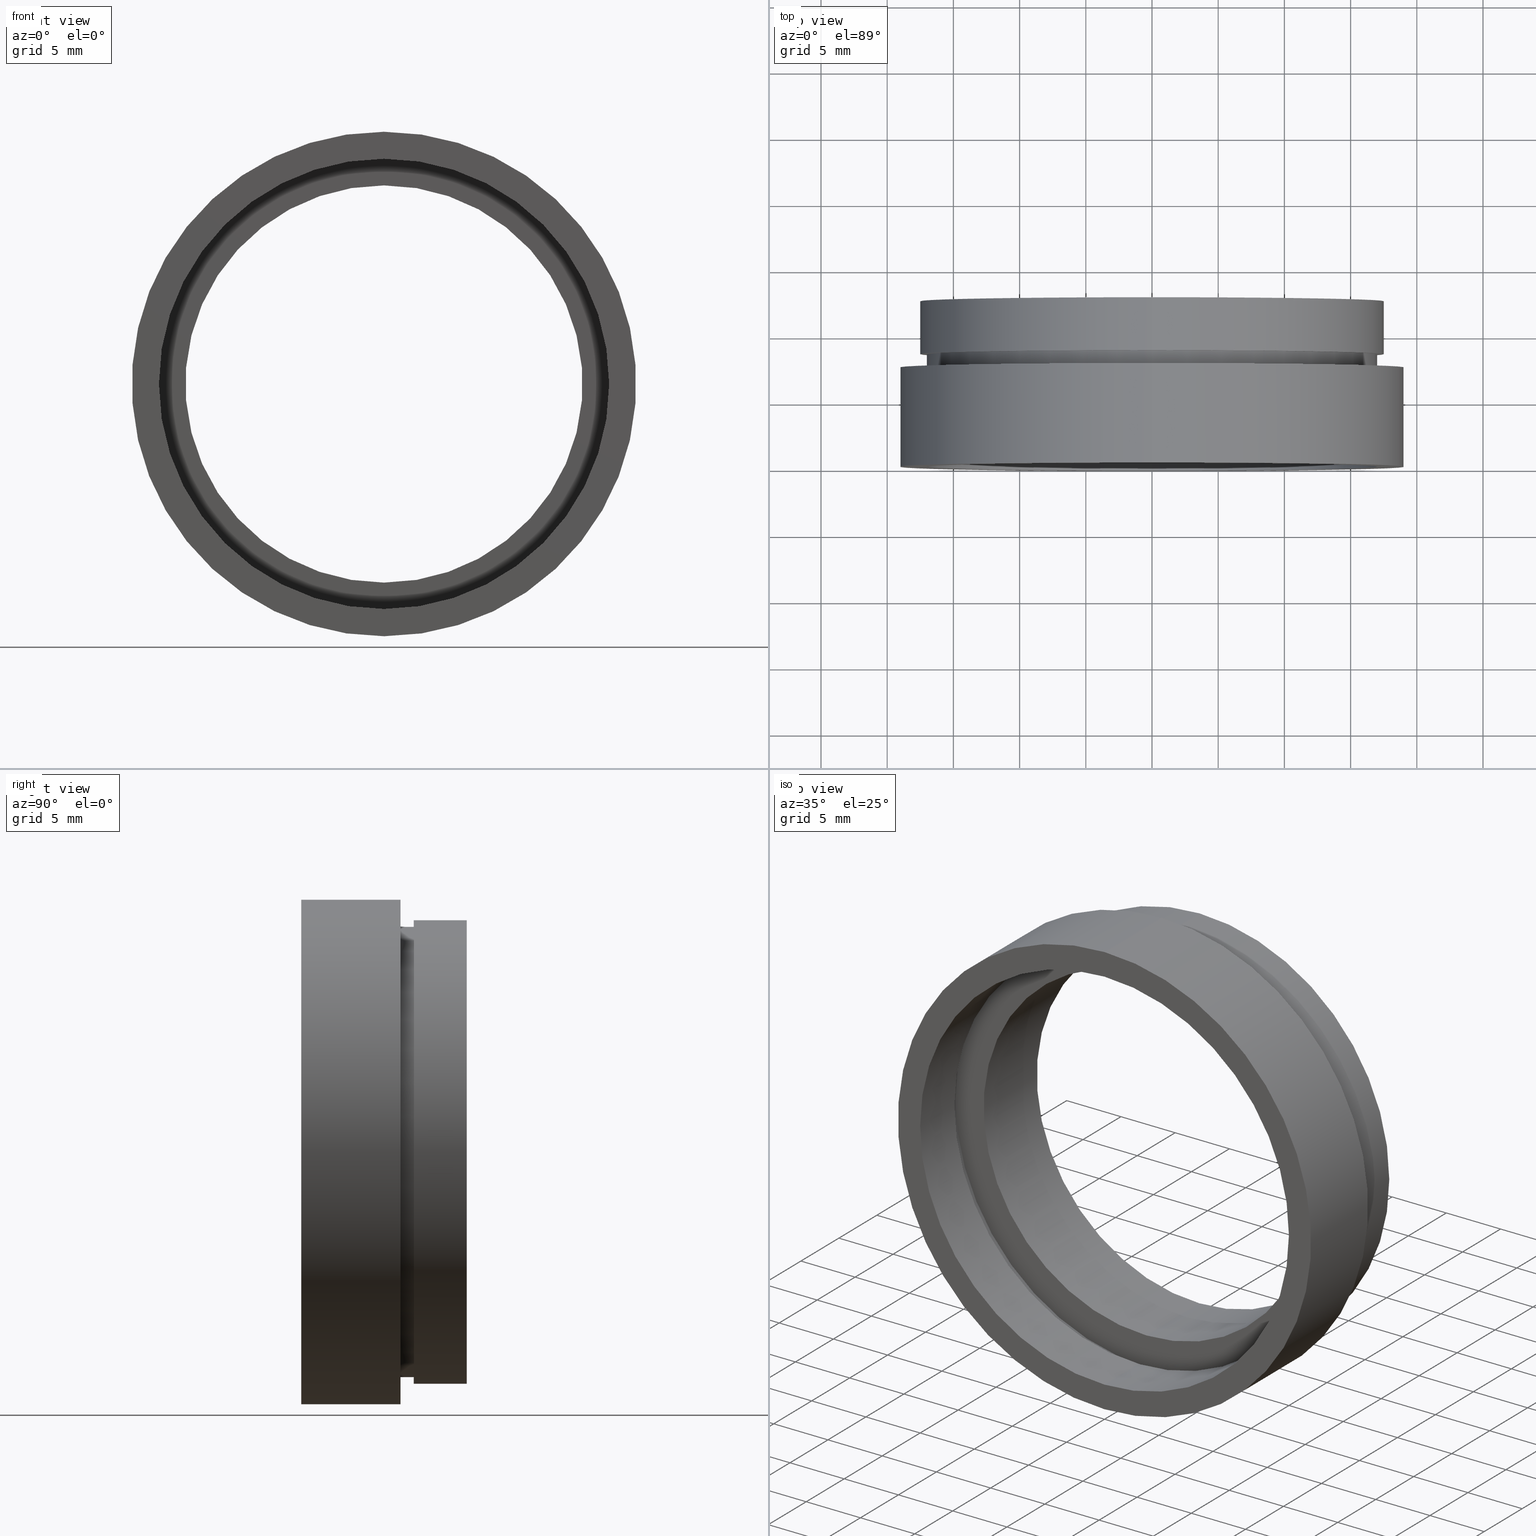
[diagram: canonical four-view strip — front | top / right | iso, engineering-drawing reading convention]
A machine part, canonical four-view strip (front | top / right | iso — engineering-drawing reading convention). The complete STEP part file that produces these views, byte-faithful:
ISO-10303-21;
HEADER;
FILE_DESCRIPTION (( 'STEP AP214' ),
    '1' );
FILE_NAME ('503038.STEP',
    '2019-09-06T01:23:15',
    ( '' ),
    ( '' ),
    'SwSTEP 2.0',
    'SolidWorks 2016',
    '' );
FILE_SCHEMA (( 'AUTOMOTIVE_DESIGN' ));
ENDSEC;

DATA;
#1 = CARTESIAN_POINT ( 'NONE',  ( 0.0000000000000000000, -2.775557561562891400E-014, 0.0000000000000000000 ) ) ;
#2 = CARTESIAN_POINT ( 'NONE',  ( 0.0000000000000000000, 5.499999999999976900, 0.0000000000000000000 ) ) ;
#3 = ORIENTED_EDGE ( 'NONE', *, *, #212, .T. ) ;
#4 = CIRCLE ( 'NONE', #563, 17.50000000000002800 ) ;
#5 = AXIS2_PLACEMENT_3D ( 'NONE', #335, #135, #231 ) ;
#6 = SURFACE_STYLE_USAGE ( .BOTH. , #238 ) ;
#7 = DIRECTION ( 'NONE',  ( -0.0000000000000000000, 1.000000000000000000, -0.0000000000000000000 ) ) ;
#8 = AXIS2_PLACEMENT_3D ( 'NONE', #148, #587, #144 ) ;
#9 = AXIS2_PLACEMENT_3D ( 'NONE', #351, #100, #202 ) ;
#10 = CARTESIAN_POINT ( 'NONE',  ( 0.0000000000000000000, 4.499999999999976000, 0.0000000000000000000 ) ) ;
#11 =( NAMED_UNIT ( * ) PLANE_ANGLE_UNIT ( ) SI_UNIT ( $, .RADIAN. ) );
#12 = EDGE_LOOP ( 'NONE', ( #379, #555, #319, #607 ) ) ;
#13 =( NAMED_UNIT ( * ) SI_UNIT ( $, .STERADIAN. ) SOLID_ANGLE_UNIT ( ) );
#14 = ORIENTED_EDGE ( 'NONE', *, *, #321, .T. ) ;
#15 = PLANE ( 'NONE',  #431 ) ;
#16 = DIRECTION ( 'NONE',  ( -0.0000000000000000000, 1.000000000000000000, -0.0000000000000000000 ) ) ;
#17 = CARTESIAN_POINT ( 'NONE',  ( 0.0000000000000000000, 161.3761669434274500, 17.60000000000002300 ) ) ;
#18 = UNCERTAINTY_MEASURE_WITH_UNIT (LENGTH_MEASURE( 1.000000000000000100E-005 ), #98, 'distance_accuracy_value', 'NONE');
#19 = VERTEX_POINT ( 'NONE', #162 ) ;
#20 = PRESENTATION_STYLE_ASSIGNMENT (( #562 ) ) ;
#21 = CARTESIAN_POINT ( 'NONE',  ( 0.0000000000000000000, -2.775557561562891400E-014, 19.05000000000002200 ) ) ;
#22 = EDGE_CURVE ( 'NONE', #262, #436, #74, .T. ) ;
#23 = CARTESIAN_POINT ( 'NONE',  ( 0.0000000000000000000, 12.49999999999998400, 17.50000000000002800 ) ) ;
#24 = DIRECTION ( 'NONE',  ( -0.0000000000000000000, 1.000000000000000000, -0.0000000000000000000 ) ) ;
#25 = ORIENTED_EDGE ( 'NONE', *, *, #79, .T. ) ;
#26 =( GEOMETRIC_REPRESENTATION_CONTEXT ( 3 ) GLOBAL_UNCERTAINTY_ASSIGNED_CONTEXT ( ( #580 ) ) GLOBAL_UNIT_ASSIGNED_CONTEXT ( ( #394, #139, #140 ) ) REPRESENTATION_CONTEXT ( 'NONE', 'WORKASPACE' ) );
#27 = CARTESIAN_POINT ( 'NONE',  ( 17.00000000000001800, 8.499999999999987600, 0.0000000000000000000 ) ) ;
#28 = CARTESIAN_POINT ( 'NONE',  ( 0.0000000000000000000, 161.3761669434274500, 0.0000000000000000000 ) ) ;
#29 = EDGE_LOOP ( 'NONE', ( #354, #327 ) ) ;
#30 = VECTOR ( 'NONE', #350, 1000.000000000000000 ) ;
#31 = FILL_AREA_STYLE_COLOUR ( '', #215 ) ;
#32 = CIRCLE ( 'NONE', #125, 17.00000000000001800 ) ;
#33 = DIRECTION ( 'NONE',  ( -0.0000000000000000000, 1.000000000000000000, -0.0000000000000000000 ) ) ;
#34 = UNCERTAINTY_MEASURE_WITH_UNIT (LENGTH_MEASURE( 1.000000000000000100E-005 ), #285, 'distance_accuracy_value', 'NONE');
#35 = PRESENTATION_LAYER_ASSIGNMENT (  '', '', ( #85 ) ) ;
#36 = DIRECTION ( 'NONE',  ( 0.0000000000000000000, 0.0000000000000000000, 1.000000000000000000 ) ) ;
#37 =( GEOMETRIC_REPRESENTATION_CONTEXT ( 3 ) GLOBAL_UNCERTAINTY_ASSIGNED_CONTEXT ( ( #18 ) ) GLOBAL_UNIT_ASSIGNED_CONTEXT ( ( #98, #532, #481 ) ) REPRESENTATION_CONTEXT ( 'NONE', 'WORKASPACE' ) );
#38 = DIRECTION ( 'NONE',  ( -0.0000000000000000000, 1.000000000000000000, -0.0000000000000000000 ) ) ;
#39 = VERTEX_POINT ( 'NONE', #261 ) ;
#40 = CIRCLE ( 'NONE', #286, 17.00000000000001800 ) ;
#41 = DIRECTION ( 'NONE',  ( 0.0000000000000000000, 0.0000000000000000000, 1.000000000000000000 ) ) ;
#42 = CIRCLE ( 'NONE', #167, 17.60000000000002300 ) ;
#43 = ADVANCED_FACE ( 'NONE', ( #209 ), #409, .T. ) ;
#44 = ADVANCED_FACE ( 'NONE', ( #522, #544 ), #599, .F. ) ;
#45 = ORIENTED_EDGE ( 'NONE', *, *, #584, .T. ) ;
#46 = LINE ( 'NONE', #255, #30 ) ;
#47 = VERTEX_POINT ( 'NONE', #311 ) ;
#48 = CARTESIAN_POINT ( 'NONE',  ( 0.0000000000000000000, 7.499999999999978700, 0.0000000000000000000 ) ) ;
#49 = EDGE_CURVE ( 'NONE', #621, #420, #550, .T. ) ;
#50 = ORIENTED_EDGE ( 'NONE', *, *, #260, .T. ) ;
#51 = FILL_AREA_STYLE ('',( #435 ) ) ;
#52 = CARTESIAN_POINT ( 'NONE',  ( 0.0000000000000000000, 161.3761669434274500, 17.00000000000002100 ) ) ;
#53 = ORIENTED_EDGE ( 'NONE', *, *, #91, .F. ) ;
#54 = COLOUR_RGB ( '',1.000000000000000000, 1.000000000000000000, 1.000000000000000000 ) ;
#55 = SURFACE_SIDE_STYLE ('',( #428 ) ) ;
#56 = MECHANICAL_DESIGN_GEOMETRIC_PRESENTATION_REPRESENTATION (  '', ( #184 ), #37 ) ;
#57 = EDGE_CURVE ( 'NONE', #313, #39, #32, .T. ) ;
#58 = SURFACE_STYLE_USAGE ( .BOTH. , #55 ) ;
#59 = DIRECTION ( 'NONE',  ( -0.0000000000000000000, 1.000000000000000000, -0.0000000000000000000 ) ) ;
#60 = CIRCLE ( 'NONE', #204, 15.00000000000001800 ) ;
#61 = LINE ( 'NONE', #72, #123 ) ;
#62 = VERTEX_POINT ( 'NONE', #23 ) ;
#63 = PLANE ( 'NONE',  #398 ) ;
#64 = DIRECTION ( 'NONE',  ( -0.0000000000000000000, 1.000000000000000000, -0.0000000000000000000 ) ) ;
#65 = ORIENTED_EDGE ( 'NONE', *, *, #109, .F. ) ;
#66 = AXIS2_PLACEMENT_3D ( 'NONE', #88, #528, #382 ) ;
#67 = EDGE_LOOP ( 'NONE', ( #65, #281 ) ) ;
#68 = AXIS2_PLACEMENT_3D ( 'NONE', #2, #343, #443 ) ;
#69 = PRESENTATION_STYLE_ASSIGNMENT (( #299 ) ) ;
#70 = AXIS2_PLACEMENT_3D ( 'NONE', #217, #317, #452 ) ;
#71 = DIRECTION ( 'NONE',  ( -0.0000000000000000000, 1.000000000000000000, 0.0000000000000000000 ) ) ;
#72 = CARTESIAN_POINT ( 'NONE',  ( 0.0000000000000000000, 161.3761669434274500, 15.00000000000001600 ) ) ;
#73 = DIRECTION ( 'NONE',  ( -0.0000000000000000000, 1.000000000000000000, -0.0000000000000000000 ) ) ;
#74 = CIRCLE ( 'NONE', #588, 17.50000000000002800 ) ;
#75 = VERTEX_POINT ( 'NONE', #411 ) ;
#76 = DIRECTION ( 'NONE',  ( 0.0000000000000000000, 0.0000000000000000000, 1.000000000000000000 ) ) ;
#77 = UNCERTAINTY_MEASURE_WITH_UNIT (LENGTH_MEASURE( 1.000000000000000100E-005 ), #564, 'distance_accuracy_value', 'NONE');
#78 = PRODUCT_RELATED_PRODUCT_CATEGORY ( 'part', '', ( #198 ) ) ;
#79 = EDGE_CURVE ( 'NONE', #420, #313, #577, .T. ) ;
#80 = DIRECTION ( 'NONE',  ( -0.0000000000000000000, 1.000000000000000000, -0.0000000000000000000 ) ) ;
#81 = EDGE_LOOP ( 'NONE', ( #108, #244 ) ) ;
#82 = DIRECTION ( 'NONE',  ( -0.0000000000000000000, 1.000000000000000000, -0.0000000000000000000 ) ) ;
#83 = VERTEX_POINT ( 'NONE', #264 ) ;
#84 = CIRCLE ( 'NONE', #617, 19.05000000000002200 ) ;
#85 = STYLED_ITEM ( 'NONE', ( #293 ), #520 ) ;
#86 = SURFACE_SIDE_STYLE ('',( #158 ) ) ;
#87 = ADVANCED_FACE ( 'NONE', ( #603 ), #328, .T. ) ;
#88 = CARTESIAN_POINT ( 'NONE',  ( 0.0000000000000000000, 161.3761669434274500, 0.0000000000000000000 ) ) ;
#89 = CIRCLE ( 'NONE', #367, 19.05000000000002200 ) ;
#90 = ORIENTED_EDGE ( 'NONE', *, *, #146, .F. ) ;
#91 = EDGE_CURVE ( 'NONE', #19, #47, #417, .T. ) ;
#92 = CARTESIAN_POINT ( 'NONE',  ( 17.00000000000002100, -1.493598162583808000E-014, 0.0000000000000000000 ) ) ;
#93 = EDGE_LOOP ( 'NONE', ( #161, #358 ) ) ;
#94 = DIRECTION ( 'NONE',  ( 0.0000000000000000000, 0.0000000000000000000, 1.000000000000000000 ) ) ;
#95 = EDGE_LOOP ( 'NONE', ( #510, #549, #498, #467 ) ) ;
#96 = AXIS2_PLACEMENT_3D ( 'NONE', #164, #166, #364 ) ;
#97 = ORIENTED_EDGE ( 'NONE', *, *, #445, .F. ) ;
#98 =( LENGTH_UNIT ( ) NAMED_UNIT ( * ) SI_UNIT ( .MILLI., .METRE. ) );
#99 = VECTOR ( 'NONE', #240, 1000.000000000000000 ) ;
#100 = DIRECTION ( 'NONE',  ( -0.0000000000000000000, 1.000000000000000000, -0.0000000000000000000 ) ) ;
#101 = AXIS2_PLACEMENT_3D ( 'NONE', #526, #237, #574 ) ;
#102 = PRESENTATION_LAYER_ASSIGNMENT (  '', '', ( #332 ) ) ;
#103 = DIRECTION ( 'NONE',  ( 0.0000000000000000000, 0.0000000000000000000, 1.000000000000000000 ) ) ;
#104 = DIRECTION ( 'NONE',  ( 0.0000000000000000000, 0.0000000000000000000, 1.000000000000000000 ) ) ;
#105 = FACE_OUTER_BOUND ( 'NONE', #118, .T. ) ;
#106 =( LENGTH_UNIT ( ) NAMED_UNIT ( * ) SI_UNIT ( .MILLI., .METRE. ) );
#107 = ORIENTED_EDGE ( 'NONE', *, *, #212, .F. ) ;
#108 = ORIENTED_EDGE ( 'NONE', *, *, #515, .F. ) ;
#109 = EDGE_CURVE ( 'NONE', #436, #262, #362, .T. ) ;
#110 = CIRCLE ( 'NONE', #230, 17.60000000000002300 ) ;
#111 = LINE ( 'NONE', #128, #307 ) ;
#112 = DIRECTION ( 'NONE',  ( 0.0000000000000000000, 0.0000000000000000000, 1.000000000000000000 ) ) ;
#113 = AXIS2_PLACEMENT_3D ( 'NONE', #136, #185, #581 ) ;
#114 = FACE_OUTER_BOUND ( 'NONE', #602, .T. ) ;
#115 = CARTESIAN_POINT ( 'NONE',  ( 0.0000000000000000000, 5.499999999999976900, 0.0000000000000000000 ) ) ;
#116 = LINE ( 'NONE', #17, #552 ) ;
#117 = CARTESIAN_POINT ( 'NONE',  ( 0.0000000000000000000, 12.49999999999998400, 15.00000000000001800 ) ) ;
#118 = EDGE_LOOP ( 'NONE', ( #561, #586 ) ) ;
#119 = EDGE_CURVE ( 'NONE', #47, #19, #110, .T. ) ;
#120 = CARTESIAN_POINT ( 'NONE',  ( 0.0000000000000000000, 7.499999999999978700, 19.05000000000002200 ) ) ;
#121 = FILL_AREA_STYLE_COLOUR ( '', #294 ) ;
#122 = ORIENTED_EDGE ( 'NONE', *, *, #179, .T. ) ;
#123 = VECTOR ( 'NONE', #373, 1000.000000000000000 ) ;
#124 =( LENGTH_UNIT ( ) NAMED_UNIT ( * ) SI_UNIT ( .MILLI., .METRE. ) );
#125 = AXIS2_PLACEMENT_3D ( 'NONE', #559, #73, #270 ) ;
#126 = CARTESIAN_POINT ( 'NONE',  ( 0.0000000000000000000, -2.775557561562891400E-014, 17.00000000000002100 ) ) ;
#127 = AXIS2_PLACEMENT_3D ( 'NONE', #490, #297, #389 ) ;
#128 = CARTESIAN_POINT ( 'NONE',  ( 2.081899558550502600E-015, 161.3761669434274500, -17.00000000000001800 ) ) ;
#129 = ADVANCED_FACE ( 'NONE', ( #200 ), #400, .F. ) ;
#130 = DIRECTION ( 'NONE',  ( -0.0000000000000000000, 1.000000000000000000, -0.0000000000000000000 ) ) ;
#131 = VERTEX_POINT ( 'NONE', #553 ) ;
#132 = VECTOR ( 'NONE', #183, 1000.000000000000000 ) ;
#133 = CIRCLE ( 'NONE', #8, 17.60000000000002300 ) ;
#134 = COLOUR_RGB ( '',1.000000000000000000, 1.000000000000000000, 1.000000000000000000 ) ;
#135 = DIRECTION ( 'NONE',  ( -0.0000000000000000000, 1.000000000000000000, -0.0000000000000000000 ) ) ;
#136 = CARTESIAN_POINT ( 'NONE',  ( 0.0000000000000000000, 161.3761669434274500, 0.0000000000000000000 ) ) ;
#137 = CLOSED_SHELL ( 'NONE', ( #182, #129, #425, #383, #43, #616, #336, #433, #377, #476, #44, #87, #572, #570, #527, #284, #334, #520 ) ) ;
#138 =( NAMED_UNIT ( * ) PLANE_ANGLE_UNIT ( ) SI_UNIT ( $, .RADIAN. ) );
#139 =( NAMED_UNIT ( * ) PLANE_ANGLE_UNIT ( ) SI_UNIT ( $, .RADIAN. ) );
#140 =( NAMED_UNIT ( * ) SI_UNIT ( $, .STERADIAN. ) SOLID_ANGLE_UNIT ( ) );
#141 = ORIENTED_EDGE ( 'NONE', *, *, #455, .F. ) ;
#142 = SURFACE_STYLE_FILL_AREA ( #611 ) ;
#143 =( LENGTH_UNIT ( ) NAMED_UNIT ( * ) SI_UNIT ( .MILLI., .METRE. ) );
#144 = DIRECTION ( 'NONE',  ( 0.0000000000000000000, 0.0000000000000000000, 1.000000000000000000 ) ) ;
#145 = AXIS2_PLACEMENT_3D ( 'NONE', #501, #16, #104 ) ;
#146 = EDGE_CURVE ( 'NONE', #241, #156, #61, .T. ) ;
#147 = MANIFOLD_SOLID_BREP ( '��ת1', #137 ) ;
#148 = CARTESIAN_POINT ( 'NONE',  ( 0.0000000000000000000, 4.499999999999976000, 0.0000000000000000000 ) ) ;
#149 =( NAMED_UNIT ( * ) SI_UNIT ( $, .STERADIAN. ) SOLID_ANGLE_UNIT ( ) );
#150 = ORIENTED_EDGE ( 'NONE', *, *, #591, .T. ) ;
#151 =( LENGTH_UNIT ( ) NAMED_UNIT ( * ) SI_UNIT ( .MILLI., .METRE. ) );
#152 = CARTESIAN_POINT ( 'NONE',  ( 0.0000000000000000000, 12.49999999999998400, 0.0000000000000000000 ) ) ;
#153 = AXIS2_PLACEMENT_3D ( 'NONE', #1, #191, #94 ) ;
#154 =( NAMED_UNIT ( * ) PLANE_ANGLE_UNIT ( ) SI_UNIT ( $, .RADIAN. ) );
#155 = EDGE_CURVE ( 'NONE', #457, #241, #169, .T. ) ;
#156 = VERTEX_POINT ( 'NONE', #117 ) ;
#157 = CYLINDRICAL_SURFACE ( 'NONE', #366, 17.00000000000001800 ) ;
#158 = SURFACE_STYLE_FILL_AREA ( #275 ) ;
#159 = DIRECTION ( 'NONE',  ( 0.0000000000000000000, 0.0000000000000000000, 1.000000000000000000 ) ) ;
#160 = DIRECTION ( 'NONE',  ( 0.0000000000000000000, 0.0000000000000000000, 1.000000000000000000 ) ) ;
#161 = ORIENTED_EDGE ( 'NONE', *, *, #462, .F. ) ;
#162 = CARTESIAN_POINT ( 'NONE',  ( 2.155378366499344400E-015, 5.499999999999976900, -17.60000000000002300 ) ) ;
#163 = MECHANICAL_DESIGN_GEOMETRIC_PRESENTATION_REPRESENTATION (  '', ( #410 ), #341 ) ;
#164 = CARTESIAN_POINT ( 'NONE',  ( 0.0000000000000000000, 161.3761669434274500, 0.0000000000000000000 ) ) ;
#165 = AXIS2_PLACEMENT_3D ( 'NONE', #478, #533, #575 ) ;
#166 = DIRECTION ( 'NONE',  ( -0.0000000000000000000, 1.000000000000000000, -0.0000000000000000000 ) ) ;
#167 = AXIS2_PLACEMENT_3D ( 'NONE', #10, #447, #589 ) ;
#168 = EDGE_LOOP ( 'NONE', ( #421, #53 ) ) ;
#169 = CIRCLE ( 'NONE', #196, 15.00000000000001600 ) ;
#170 = CIRCLE ( 'NONE', #5, 15.00000000000001800 ) ;
#171 = CYLINDRICAL_SURFACE ( 'NONE', #9, 15.00000000000001600 ) ;
#172 =( NAMED_UNIT ( * ) PLANE_ANGLE_UNIT ( ) SI_UNIT ( $, .RADIAN. ) );
#173 = DIRECTION ( 'NONE',  ( -0.0000000000000000000, 1.000000000000000000, -0.0000000000000000000 ) ) ;
#174 = UNCERTAINTY_MEASURE_WITH_UNIT (LENGTH_MEASURE( 1.000000000000000100E-005 ), #124, 'distance_accuracy_value', 'NONE');
#175 = FACE_BOUND ( 'NONE', #29, .T. ) ;
#176 = SURFACE_STYLE_USAGE ( .BOTH. , #220 ) ;
#177 = VERTEX_POINT ( 'NONE', #468 ) ;
#178 = ORIENTED_EDGE ( 'NONE', *, *, #360, .F. ) ;
#179 = EDGE_CURVE ( 'NONE', #62, #83, #4, .T. ) ;
#180 = VERTEX_POINT ( 'NONE', #120 ) ;
#181 = DIRECTION ( 'NONE',  ( -0.0000000000000000000, 1.000000000000000000, -0.0000000000000000000 ) ) ;
#182 = ADVANCED_FACE ( 'NONE', ( #504 ), #618, .F. ) ;
#183 = DIRECTION ( 'NONE',  ( -0.0000000000000000000, 1.000000000000000000, -0.0000000000000000000 ) ) ;
#184 = STYLED_ITEM ( 'NONE', ( #69 ), #425 ) ;
#185 = DIRECTION ( 'NONE',  ( -0.0000000000000000000, 1.000000000000000000, -0.0000000000000000000 ) ) ;
#186 = CARTESIAN_POINT ( 'NONE',  ( 1.836970198721032000E-015, 161.3761669434274500, -15.00000000000001600 ) ) ;
#187 = CYLINDRICAL_SURFACE ( 'NONE', #256, 15.00000000000001600 ) ;
#188 = VECTOR ( 'NONE', #322, 1000.000000000000000 ) ;
#189 = EDGE_CURVE ( 'NONE', #39, #313, #253, .T. ) ;
#190 = ORIENTED_EDGE ( 'NONE', *, *, #119, .T. ) ;
#191 = DIRECTION ( 'NONE',  ( -0.0000000000000000000, 1.000000000000000000, -0.0000000000000000000 ) ) ;
#192 = CARTESIAN_POINT ( 'NONE',  ( 2.332952152375710400E-015, 161.3761669434274500, -19.05000000000002200 ) ) ;
#193 = ORIENTED_EDGE ( 'NONE', *, *, #418, .T. ) ;
#194 = DIRECTION ( 'NONE',  ( -0.0000000000000000000, 1.000000000000000000, -0.0000000000000000000 ) ) ;
#195 = SURFACE_SIDE_STYLE ('',( #282 ) ) ;
#196 = AXIS2_PLACEMENT_3D ( 'NONE', #415, #517, #76 ) ;
#197 = DIRECTION ( 'NONE',  ( 0.0000000000000000000, 0.0000000000000000000, 1.000000000000000000 ) ) ;
#198 = PRODUCT ( '503038', '503038', '', ( #250 ) ) ;
#199 = ORIENTED_EDGE ( 'NONE', *, *, #484, .F. ) ;
#200 = FACE_OUTER_BOUND ( 'NONE', #456, .T. ) ;
#201 = COLOUR_RGB ( '',1.000000000000000000, 1.000000000000000000, 1.000000000000000000 ) ;
#202 = DIRECTION ( 'NONE',  ( 0.0000000000000000000, 0.0000000000000000000, 1.000000000000000000 ) ) ;
#203 = PRESENTATION_STYLE_ASSIGNMENT (( #58 ) ) ;
#204 = AXIS2_PLACEMENT_3D ( 'NONE', #152, #355, #207 ) ;
#205 = STYLED_ITEM ( 'NONE', ( #497 ), #357 ) ;
#206 = CARTESIAN_POINT ( 'NONE',  ( 2.081899558550503000E-015, -2.775557561562891400E-014, -17.00000000000002100 ) ) ;
#207 = DIRECTION ( 'NONE',  ( 0.0000000000000000000, 0.0000000000000000000, 1.000000000000000000 ) ) ;
#208 = CYLINDRICAL_SURFACE ( 'NONE', #113, 19.05000000000002200 ) ;
#209 = FACE_OUTER_BOUND ( 'NONE', #592, .T. ) ;
#210 = DIRECTION ( 'NONE',  ( 0.0000000000000000000, 0.0000000000000000000, 1.000000000000000000 ) ) ;
#211 = EDGE_LOOP ( 'NONE', ( #269, #361 ) ) ;
#212 = EDGE_CURVE ( 'NONE', #622, #180, #495, .T. ) ;
#213 = EDGE_LOOP ( 'NONE', ( #560, #272, #25, #453 ) ) ;
#214 = ORIENTED_EDGE ( 'NONE', *, *, #277, .F. ) ;
#215 = COLOUR_RGB ( '',1.000000000000000000, 1.000000000000000000, 1.000000000000000000 ) ;
#216 = CIRCLE ( 'NONE', #523, 17.00000000000002100 ) ;
#217 = CARTESIAN_POINT ( 'NONE',  ( 0.0000000000000000000, 0.0000000000000000000, 0.0000000000000000000 ) ) ;
#218 = ORIENTED_EDGE ( 'NONE', *, *, #418, .F. ) ;
#219 = PRESENTATION_LAYER_ASSIGNMENT (  '', '', ( #184 ) ) ;
#220 = SURFACE_SIDE_STYLE ('',( #142 ) ) ;
#221 = SURFACE_STYLE_FILL_AREA ( #51 ) ;
#222 = ORIENTED_EDGE ( 'NONE', *, *, #155, .F. ) ;
#223 = EDGE_CURVE ( 'NONE', #177, #259, #507, .T. ) ;
#224 = ORIENTED_EDGE ( 'NONE', *, *, #345, .F. ) ;
#225 = CARTESIAN_POINT ( 'NONE',  ( 0.0000000000000000000, 12.49999999999998400, 0.0000000000000000000 ) ) ;
#226 = DIRECTION ( 'NONE',  ( 0.0000000000000000000, 0.0000000000000000000, 1.000000000000000000 ) ) ;
#227 = EDGE_LOOP ( 'NONE', ( #502, #547 ) ) ;
#228 = CARTESIAN_POINT ( 'NONE',  ( 0.0000000000000000000, 5.499999999999976900, 0.0000000000000000000 ) ) ;
#229 = ORIENTED_EDGE ( 'NONE', *, *, #57, .F. ) ;
#230 = AXIS2_PLACEMENT_3D ( 'NONE', #228, #80, #226 ) ;
#231 = DIRECTION ( 'NONE',  ( 0.0000000000000000000, 0.0000000000000000000, 1.000000000000000000 ) ) ;
#232 = PRESENTATION_LAYER_ASSIGNMENT (  '', '', ( #429 ) ) ;
#233 = PRODUCT_DEFINITION ( 'δ֪', '', #505, #283 ) ;
#234 = DIRECTION ( 'NONE',  ( 0.0000000000000000000, 0.0000000000000000000, 1.000000000000000000 ) ) ;
#235 = CARTESIAN_POINT ( 'NONE',  ( 0.0000000000000000000, 4.499999999999976000, 0.0000000000000000000 ) ) ;
#236 = CYLINDRICAL_SURFACE ( 'NONE', #318, 17.60000000000002300 ) ;
#237 = DIRECTION ( 'NONE',  ( -0.0000000000000000000, 1.000000000000000000, -0.0000000000000000000 ) ) ;
#238 = SURFACE_SIDE_STYLE ('',( #221 ) ) ;
#239 = VERTEX_POINT ( 'NONE', #623 ) ;
#240 = DIRECTION ( 'NONE',  ( -0.0000000000000000000, 1.000000000000000000, -0.0000000000000000000 ) ) ;
#241 = VERTEX_POINT ( 'NONE', #480 ) ;
#242 = FILL_AREA_STYLE ('',( #585 ) ) ;
#243 = DIRECTION ( 'NONE',  ( 0.0000000000000000000, 0.0000000000000000000, 1.000000000000000000 ) ) ;
#244 = ORIENTED_EDGE ( 'NONE', *, *, #223, .F. ) ;
#245 =( GEOMETRIC_REPRESENTATION_CONTEXT ( 3 ) GLOBAL_UNCERTAINTY_ASSIGNED_CONTEXT ( ( #372 ) ) GLOBAL_UNIT_ASSIGNED_CONTEXT ( ( #143, #172, #365 ) ) REPRESENTATION_CONTEXT ( 'NONE', 'WORKASPACE' ) );
#246 = SHAPE_DEFINITION_REPRESENTATION ( #254, #357 ) ;
#247 = EDGE_CURVE ( 'NONE', #436, #62, #380, .T. ) ;
#248 = DIRECTION ( 'NONE',  ( -0.0000000000000000000, 1.000000000000000000, -0.0000000000000000000 ) ) ;
#249 = APPLICATION_PROTOCOL_DEFINITION ( 'draft international standard', 'automotive_design', 1998, #534 ) ;
#250 = PRODUCT_CONTEXT ( 'NONE', #534, 'mechanical' ) ;
#251 = SURFACE_SIDE_STYLE ('',( #401 ) ) ;
#252 = ORIENTED_EDGE ( 'NONE', *, *, #455, .T. ) ;
#253 = CIRCLE ( 'NONE', #298, 17.00000000000001800 ) ;
#254 = PRODUCT_DEFINITION_SHAPE ( 'NONE', 'NONE',  #233 ) ;
#255 = CARTESIAN_POINT ( 'NONE',  ( 2.143131898507871800E-015, 161.3761669434274500, -17.50000000000002800 ) ) ;
#256 = AXIS2_PLACEMENT_3D ( 'NONE', #290, #248, #487 ) ;
#257 = SURFACE_STYLE_USAGE ( .BOTH. , #251 ) ;
#258 = DIRECTION ( 'NONE',  ( -0.0000000000000000000, 1.000000000000000000, -0.0000000000000000000 ) ) ;
#259 = VERTEX_POINT ( 'NONE', #473 ) ;
#260 = EDGE_CURVE ( 'NONE', #239, #156, #170, .T. ) ;
#261 = CARTESIAN_POINT ( 'NONE',  ( 2.081899558550502600E-015, 8.499999999999980500, -17.00000000000001800 ) ) ;
#262 = VERTEX_POINT ( 'NONE', #578 ) ;
#263 = STYLED_ITEM ( 'NONE', ( #568 ), #182 ) ;
#264 = CARTESIAN_POINT ( 'NONE',  ( 2.143131898507871800E-015, 12.49999999999998400, -17.50000000000002800 ) ) ;
#265 = AXIS2_PLACEMENT_3D ( 'NONE', #519, #376, #391 ) ;
#266 = ORIENTED_EDGE ( 'NONE', *, *, #515, .T. ) ;
#267 = ORIENTED_EDGE ( 'NONE', *, *, #375, .F. ) ;
#268 = FACE_OUTER_BOUND ( 'NONE', #471, .T. ) ;
#269 = ORIENTED_EDGE ( 'NONE', *, *, #390, .F. ) ;
#270 = DIRECTION ( 'NONE',  ( 0.0000000000000000000, 0.0000000000000000000, 1.000000000000000000 ) ) ;
#271 =( NAMED_UNIT ( * ) PLANE_ANGLE_UNIT ( ) SI_UNIT ( $, .RADIAN. ) );
#272 = ORIENTED_EDGE ( 'NONE', *, *, #49, .T. ) ;
#273 = MECHANICAL_DESIGN_GEOMETRIC_PRESENTATION_REPRESENTATION (  '', ( #518 ), #395 ) ;
#274 = CYLINDRICAL_SURFACE ( 'NONE', #145, 17.00000000000002100 ) ;
#275 = FILL_AREA_STYLE ('',( #121 ) ) ;
#276 =( GEOMETRIC_REPRESENTATION_CONTEXT ( 3 ) GLOBAL_UNCERTAINTY_ASSIGNED_CONTEXT ( ( #486 ) ) GLOBAL_UNIT_ASSIGNED_CONTEXT ( ( #349, #11, #149 ) ) REPRESENTATION_CONTEXT ( 'NONE', 'WORKASPACE' ) );
#277 = EDGE_CURVE ( 'NONE', #457, #239, #381, .T. ) ;
#278 =( NAMED_UNIT ( * ) PLANE_ANGLE_UNIT ( ) SI_UNIT ( $, .RADIAN. ) );
#279 = DIRECTION ( 'NONE',  ( -0.0000000000000000000, 1.000000000000000000, -0.0000000000000000000 ) ) ;
#280 = DIRECTION ( 'NONE',  ( 0.0000000000000000000, 0.0000000000000000000, 1.000000000000000000 ) ) ;
#281 = ORIENTED_EDGE ( 'NONE', *, *, #22, .F. ) ;
#282 = SURFACE_STYLE_FILL_AREA ( #242 ) ;
#283 = PRODUCT_DEFINITION_CONTEXT ( 'detailed design', #474, 'design' ) ;
#284 = ADVANCED_FACE ( 'NONE', ( #114 ), #236, .F. ) ;
#285 =( LENGTH_UNIT ( ) NAMED_UNIT ( * ) SI_UNIT ( .MILLI., .METRE. ) );
#286 = AXIS2_PLACEMENT_3D ( 'NONE', #529, #339, #288 ) ;
#287 = CARTESIAN_POINT ( 'NONE',  ( 0.0000000000000000000, 161.3761669434274500, 19.05000000000002200 ) ) ;
#288 = DIRECTION ( 'NONE',  ( 0.0000000000000000000, 0.0000000000000000000, 1.000000000000000000 ) ) ;
#289 = EDGE_LOOP ( 'NONE', ( #511, #407 ) ) ;
#290 = CARTESIAN_POINT ( 'NONE',  ( 0.0000000000000000000, 161.3761669434274500, 0.0000000000000000000 ) ) ;
#291 = ORIENTED_EDGE ( 'NONE', *, *, #591, .F. ) ;
#292 = EDGE_CURVE ( 'NONE', #573, #320, #337, .T. ) ;
#293 = PRESENTATION_STYLE_ASSIGNMENT (( #257 ) ) ;
#294 = COLOUR_RGB ( '',1.000000000000000000, 1.000000000000000000, 1.000000000000000000 ) ;
#295 = EDGE_LOOP ( 'NONE', ( #45, #252, #224, #107 ) ) ;
#296 = EDGE_LOOP ( 'NONE', ( #222, #506, #50, #90 ) ) ;
#297 = DIRECTION ( 'NONE',  ( -0.0000000000000000000, 1.000000000000000000, -0.0000000000000000000 ) ) ;
#298 = AXIS2_PLACEMENT_3D ( 'NONE', #432, #130, #234 ) ;
#299 = SURFACE_STYLE_USAGE ( .BOTH. , #195 ) ;
#300 = ORIENTED_EDGE ( 'NONE', *, *, #79, .F. ) ;
#301 = FILL_AREA_STYLE ('',( #451 ) ) ;
#302 = AXIS2_PLACEMENT_3D ( 'NONE', #393, #7, #197 ) ;
#303 = FACE_OUTER_BOUND ( 'NONE', #608, .T. ) ;
#304 = MECHANICAL_DESIGN_GEOMETRIC_PRESENTATION_REPRESENTATION (  '', ( #332 ), #604 ) ;
#305 = FILL_AREA_STYLE ('',( #590 ) ) ;
#306 = DIRECTION ( 'NONE',  ( 0.0000000000000000000, -1.000000000000000000, 0.0000000000000000000 ) ) ;
#307 = VECTOR ( 'NONE', #181, 1000.000000000000000 ) ;
#308 = CARTESIAN_POINT ( 'NONE',  ( 1.836970198721032000E-015, 5.499999999999976900, -15.00000000000001600 ) ) ;
#309 = CARTESIAN_POINT ( 'NONE',  ( 0.0000000000000000000, 161.3761669434274500, 0.0000000000000000000 ) ) ;
#310 = PRESENTATION_LAYER_ASSIGNMENT (  '', '', ( #410 ) ) ;
#311 = CARTESIAN_POINT ( 'NONE',  ( 0.0000000000000000000, 5.499999999999976900, 17.60000000000002300 ) ) ;
#312 = CARTESIAN_POINT ( 'NONE',  ( 2.081899558550502600E-015, 7.499999999999978700, -17.00000000000001800 ) ) ;
#313 = VERTEX_POINT ( 'NONE', #385 ) ;
#314 = CARTESIAN_POINT ( 'NONE',  ( 0.0000000000000000000, 161.3761669434274500, 17.00000000000001800 ) ) ;
#315 = EDGE_CURVE ( 'NONE', #320, #573, #216, .T. ) ;
#316 = ORIENTED_EDGE ( 'NONE', *, *, #223, .T. ) ;
#317 = DIRECTION ( 'NONE',  ( 0.0000000000000000000, 0.0000000000000000000, 1.000000000000000000 ) ) ;
#318 = AXIS2_PLACEMENT_3D ( 'NONE', #566, #279, #475 ) ;
#319 = ORIENTED_EDGE ( 'NONE', *, *, #247, .T. ) ;
#320 = VERTEX_POINT ( 'NONE', #126 ) ;
#321 = EDGE_CURVE ( 'NONE', #621, #39, #111, .T. ) ;
#322 = DIRECTION ( 'NONE',  ( -0.0000000000000000000, 1.000000000000000000, -0.0000000000000000000 ) ) ;
#323 = ORIENTED_EDGE ( 'NONE', *, *, #146, .T. ) ;
#324 = CARTESIAN_POINT ( 'NONE',  ( 0.0000000000000000000, 161.3761669434274500, 0.0000000000000000000 ) ) ;
#325 = DIRECTION ( 'NONE',  ( 0.0000000000000000000, 0.0000000000000000000, 1.000000000000000000 ) ) ;
#326 = AXIS2_PLACEMENT_3D ( 'NONE', #115, #173, #325 ) ;
#327 = ORIENTED_EDGE ( 'NONE', *, *, #292, .T. ) ;
#328 = CYLINDRICAL_SURFACE ( 'NONE', #371, 17.50000000000002800 ) ;
#329 = FACE_OUTER_BOUND ( 'NONE', #95, .T. ) ;
#330 = CARTESIAN_POINT ( 'NONE',  ( 0.0000000000000000000, -2.775557561562891400E-014, 0.0000000000000000000 ) ) ;
#331 = AXIS2_PLACEMENT_3D ( 'NONE', #499, #492, #103 ) ;
#332 = STYLED_ITEM ( 'NONE', ( #203 ), #570 ) ;
#333 = CARTESIAN_POINT ( 'NONE',  ( 0.0000000000000000000, 161.3761669434274500, 17.50000000000002800 ) ) ;
#334 = ADVANCED_FACE ( 'NONE', ( #489, #524 ), #525, .F. ) ;
#335 = CARTESIAN_POINT ( 'NONE',  ( 0.0000000000000000000, 12.49999999999998400, 0.0000000000000000000 ) ) ;
#336 = ADVANCED_FACE ( 'NONE', ( #303, #175 ), #440, .F. ) ;
#337 = CIRCLE ( 'NONE', #101, 17.00000000000002100 ) ;
#338 = CARTESIAN_POINT ( 'NONE',  ( 0.0000000000000000000, 8.499999999999980500, 17.50000000000002800 ) ) ;
#339 = DIRECTION ( 'NONE',  ( -0.0000000000000000000, 1.000000000000000000, -0.0000000000000000000 ) ) ;
#340 = ORIENTED_EDGE ( 'NONE', *, *, #584, .F. ) ;
#341 =( GEOMETRIC_REPRESENTATION_CONTEXT ( 3 ) GLOBAL_UNCERTAINTY_ASSIGNED_CONTEXT ( ( #174 ) ) GLOBAL_UNIT_ASSIGNED_CONTEXT ( ( #124, #271, #368 ) ) REPRESENTATION_CONTEXT ( 'NONE', 'WORKASPACE' ) );
#342 = DIRECTION ( 'NONE',  ( 0.0000000000000000000, 0.0000000000000000000, 1.000000000000000000 ) ) ;
#343 = DIRECTION ( 'NONE',  ( -0.0000000000000000000, 1.000000000000000000, -0.0000000000000000000 ) ) ;
#344 = PRESENTATION_LAYER_ASSIGNMENT (  '', '', ( #205 ) ) ;
#345 = EDGE_CURVE ( 'NONE', #180, #131, #84, .T. ) ;
#346 = ORIENTED_EDGE ( 'NONE', *, *, #360, .T. ) ;
#347 = COLOUR_RGB ( '',1.000000000000000000, 1.000000000000000000, 1.000000000000000000 ) ;
#348 = CYLINDRICAL_SURFACE ( 'NONE', #127, 17.50000000000002800 ) ;
#349 =( LENGTH_UNIT ( ) NAMED_UNIT ( * ) SI_UNIT ( .MILLI., .METRE. ) );
#350 = DIRECTION ( 'NONE',  ( -0.0000000000000000000, 1.000000000000000000, -0.0000000000000000000 ) ) ;
#351 = CARTESIAN_POINT ( 'NONE',  ( 0.0000000000000000000, 161.3761669434274500, 0.0000000000000000000 ) ) ;
#352 = AXIS2_PLACEMENT_3D ( 'NONE', #92, #485, #388 ) ;
#353 = APPLICATION_PROTOCOL_DEFINITION ( 'draft international standard', 'automotive_design', 1998, #474 ) ;
#354 = ORIENTED_EDGE ( 'NONE', *, *, #315, .T. ) ;
#355 = DIRECTION ( 'NONE',  ( -0.0000000000000000000, 1.000000000000000000, -0.0000000000000000000 ) ) ;
#356 = DIRECTION ( 'NONE',  ( 0.0000000000000000000, 0.0000000000000000000, 1.000000000000000000 ) ) ;
#357 = ADVANCED_BREP_SHAPE_REPRESENTATION ( '503038', ( #147, #70 ), #276 ) ;
#358 = ORIENTED_EDGE ( 'NONE', *, *, #260, .F. ) ;
#359 = CARTESIAN_POINT ( 'NONE',  ( 2.081899558550503000E-015, 161.3761669434274500, -17.00000000000002100 ) ) ;
#360 = EDGE_CURVE ( 'NONE', #479, #622, #427, .T. ) ;
#361 = ORIENTED_EDGE ( 'NONE', *, *, #49, .F. ) ;
#362 = CIRCLE ( 'NONE', #503, 17.50000000000002800 ) ;
#363 = AXIS2_PLACEMENT_3D ( 'NONE', #27, #71, #548 ) ;
#364 = DIRECTION ( 'NONE',  ( 0.0000000000000000000, 0.0000000000000000000, 1.000000000000000000 ) ) ;
#365 =( NAMED_UNIT ( * ) SI_UNIT ( $, .STERADIAN. ) SOLID_ANGLE_UNIT ( ) );
#366 = AXIS2_PLACEMENT_3D ( 'NONE', #624, #538, #210 ) ;
#367 = AXIS2_PLACEMENT_3D ( 'NONE', #540, #258, #356 ) ;
#368 =( NAMED_UNIT ( * ) SI_UNIT ( $, .STERADIAN. ) SOLID_ANGLE_UNIT ( ) );
#369 = ORIENTED_EDGE ( 'NONE', *, *, #546, .T. ) ;
#370 =( NAMED_UNIT ( * ) SI_UNIT ( $, .STERADIAN. ) SOLID_ANGLE_UNIT ( ) );
#371 = AXIS2_PLACEMENT_3D ( 'NONE', #28, #614, #422 ) ;
#372 = UNCERTAINTY_MEASURE_WITH_UNIT (LENGTH_MEASURE( 1.000000000000000100E-005 ), #143, 'distance_accuracy_value', 'NONE');
#373 = DIRECTION ( 'NONE',  ( -0.0000000000000000000, 1.000000000000000000, -0.0000000000000000000 ) ) ;
#374 = MECHANICAL_DESIGN_GEOMETRIC_PRESENTATION_REPRESENTATION (  '', ( #205 ), #245 ) ;
#375 = EDGE_CURVE ( 'NONE', #131, #180, #576, .T. ) ;
#376 = DIRECTION ( 'NONE',  ( 0.0000000000000000000, -1.000000000000000000, 0.0000000000000000000 ) ) ;
#377 = ADVANCED_FACE ( 'NONE', ( #437, #105 ), #438, .F. ) ;
#378 = SURFACE_STYLE_USAGE ( .BOTH. , #86 ) ;
#379 = ORIENTED_EDGE ( 'NONE', *, *, #493, .F. ) ;
#380 = LINE ( 'NONE', #333, #612 ) ;
#381 = LINE ( 'NONE', #186, #99 ) ;
#382 = DIRECTION ( 'NONE',  ( 0.0000000000000000000, 0.0000000000000000000, 1.000000000000000000 ) ) ;
#383 = ADVANCED_FACE ( 'NONE', ( #329 ), #348, .T. ) ;
#384 = LINE ( 'NONE', #359, #579 ) ;
#385 = CARTESIAN_POINT ( 'NONE',  ( 0.0000000000000000000, 8.499999999999980500, 17.00000000000001800 ) ) ;
#386 = EDGE_LOOP ( 'NONE', ( #141, #346, #3, #267 ) ) ;
#387 = DIRECTION ( 'NONE',  ( -0.0000000000000000000, 1.000000000000000000, -0.0000000000000000000 ) ) ;
#388 = DIRECTION ( 'NONE',  ( 0.0000000000000000000, 0.0000000000000000000, 1.000000000000000000 ) ) ;
#389 = DIRECTION ( 'NONE',  ( 0.0000000000000000000, 0.0000000000000000000, 1.000000000000000000 ) ) ;
#390 = EDGE_CURVE ( 'NONE', #420, #621, #40, .T. ) ;
#391 = DIRECTION ( 'NONE',  ( 0.0000000000000000000, -0.0000000000000000000, -1.000000000000000000 ) ) ;
#392 = EDGE_LOOP ( 'NONE', ( #214, #97, #323, #446 ) ) ;
#393 = CARTESIAN_POINT ( 'NONE',  ( 0.0000000000000000000, 12.49999999999998400, 0.0000000000000000000 ) ) ;
#394 =( LENGTH_UNIT ( ) NAMED_UNIT ( * ) SI_UNIT ( .MILLI., .METRE. ) );
#395 =( GEOMETRIC_REPRESENTATION_CONTEXT ( 3 ) GLOBAL_UNCERTAINTY_ASSIGNED_CONTEXT ( ( #77 ) ) GLOBAL_UNIT_ASSIGNED_CONTEXT ( ( #564, #278, #370 ) ) REPRESENTATION_CONTEXT ( 'NONE', 'WORKASPACE' ) );
#396 = DIRECTION ( 'NONE',  ( -0.0000000000000000000, 1.000000000000000000, -0.0000000000000000000 ) ) ;
#397 = AXIS2_PLACEMENT_3D ( 'NONE', #439, #387, #342 ) ;
#398 = AXIS2_PLACEMENT_3D ( 'NONE', #402, #449, #593 ) ;
#399 = ORIENTED_EDGE ( 'NONE', *, *, #91, .T. ) ;
#400 = CYLINDRICAL_SURFACE ( 'NONE', #531, 17.60000000000002300 ) ;
#401 = SURFACE_STYLE_FILL_AREA ( #305 ) ;
#402 = CARTESIAN_POINT ( 'NONE',  ( 17.60000000000002300, 5.499999999999983100, 0.0000000000000000000 ) ) ;
#403 = FILL_AREA_STYLE ('',( #450 ) ) ;
#404 = DIRECTION ( 'NONE',  ( 0.0000000000000000000, -0.0000000000000000000, -1.000000000000000000 ) ) ;
#405 = DIRECTION ( 'NONE',  ( -0.0000000000000000000, 1.000000000000000000, -0.0000000000000000000 ) ) ;
#406 = DIRECTION ( 'NONE',  ( -0.0000000000000000000, 1.000000000000000000, -0.0000000000000000000 ) ) ;
#407 = ORIENTED_EDGE ( 'NONE', *, *, #155, .T. ) ;
#408 = FACE_OUTER_BOUND ( 'NONE', #535, .T. ) ;
#409 = CYLINDRICAL_SURFACE ( 'NONE', #96, 17.00000000000001800 ) ;
#410 = STYLED_ITEM ( 'NONE', ( #20 ), #147 ) ;
#411 = CARTESIAN_POINT ( 'NONE',  ( 2.155378366499344400E-015, 4.499999999999976000, -17.60000000000002300 ) ) ;
#412 = EDGE_CURVE ( 'NONE', #83, #62, #458, .T. ) ;
#413 = ORIENTED_EDGE ( 'NONE', *, *, #315, .F. ) ;
#414 = FACE_OUTER_BOUND ( 'NONE', #296, .T. ) ;
#415 = CARTESIAN_POINT ( 'NONE',  ( 0.0000000000000000000, 5.499999999999976900, 0.0000000000000000000 ) ) ;
#416 = CIRCLE ( 'NONE', #331, 17.00000000000002500 ) ;
#417 = CIRCLE ( 'NONE', #326, 17.60000000000002300 ) ;
#418 = EDGE_CURVE ( 'NONE', #482, #75, #133, .T. ) ;
#419 = SURFACE_SIDE_STYLE ('',( #557 ) ) ;
#420 = VERTEX_POINT ( 'NONE', #483 ) ;
#421 = ORIENTED_EDGE ( 'NONE', *, *, #119, .F. ) ;
#422 = DIRECTION ( 'NONE',  ( 0.0000000000000000000, 0.0000000000000000000, 1.000000000000000000 ) ) ;
#423 = PRESENTATION_LAYER_ASSIGNMENT (  '', '', ( #263 ) ) ;
#424 = SURFACE_STYLE_USAGE ( .BOTH. , #463 ) ;
#425 = ADVANCED_FACE ( 'NONE', ( #414 ), #187, .F. ) ;
#426 = ORIENTED_EDGE ( 'NONE', *, *, #390, .T. ) ;
#427 = CIRCLE ( 'NONE', #153, 19.05000000000002200 ) ;
#428 = SURFACE_STYLE_FILL_AREA ( #403 ) ;
#429 = STYLED_ITEM ( 'NONE', ( #613 ), #383 ) ;
#430 = EDGE_CURVE ( 'NONE', #320, #259, #619, .T. ) ;
#431 = AXIS2_PLACEMENT_3D ( 'NONE', #595, #306, #404 ) ;
#432 = CARTESIAN_POINT ( 'NONE',  ( 0.0000000000000000000, 8.499999999999980500, 0.0000000000000000000 ) ) ;
#433 = ADVANCED_FACE ( 'NONE', ( #605 ), #208, .T. ) ;
#434 =( NAMED_UNIT ( * ) SI_UNIT ( $, .STERADIAN. ) SOLID_ANGLE_UNIT ( ) );
#435 = FILL_AREA_STYLE_COLOUR ( '', #54 ) ;
#436 = VERTEX_POINT ( 'NONE', #338 ) ;
#437 = FACE_BOUND ( 'NONE', #211, .T. ) ;
#438 = PLANE ( 'NONE',  #165 ) ;
#439 = CARTESIAN_POINT ( 'NONE',  ( 0.0000000000000000000, 7.499999999999978700, 0.0000000000000000000 ) ) ;
#440 = PLANE ( 'NONE',  #352 ) ;
#441 = ORIENTED_EDGE ( 'NONE', *, *, #610, .T. ) ;
#442 =( GEOMETRIC_REPRESENTATION_CONTEXT ( 3 ) GLOBAL_UNCERTAINTY_ASSIGNED_CONTEXT ( ( #34 ) ) GLOBAL_UNIT_ASSIGNED_CONTEXT ( ( #285, #138, #434 ) ) REPRESENTATION_CONTEXT ( 'NONE', 'WORKASPACE' ) );
#443 = DIRECTION ( 'NONE',  ( 0.0000000000000000000, 0.0000000000000000000, 1.000000000000000000 ) ) ;
#444 = AXIS2_PLACEMENT_3D ( 'NONE', #309, #406, #160 ) ;
#445 = EDGE_CURVE ( 'NONE', #241, #457, #477, .T. ) ;
#446 = ORIENTED_EDGE ( 'NONE', *, *, #462, .T. ) ;
#447 = DIRECTION ( 'NONE',  ( -0.0000000000000000000, 1.000000000000000000, -0.0000000000000000000 ) ) ;
#448 = FACE_OUTER_BOUND ( 'NONE', #168, .T. ) ;
#449 = DIRECTION ( 'NONE',  ( -0.0000000000000000000, 1.000000000000000000, 0.0000000000000000000 ) ) ;
#450 = FILL_AREA_STYLE_COLOUR ( '', #460 ) ;
#451 = FILL_AREA_STYLE_COLOUR ( '', #134 ) ;
#452 = DIRECTION ( 'NONE',  ( 1.000000000000000000, 0.0000000000000000000, 0.0000000000000000000 ) ) ;
#453 = ORIENTED_EDGE ( 'NONE', *, *, #189, .F. ) ;
#454 = DIRECTION ( 'NONE',  ( -0.0000000000000000000, 1.000000000000000000, -0.0000000000000000000 ) ) ;
#455 = EDGE_CURVE ( 'NONE', #479, #131, #556, .T. ) ;
#456 = EDGE_LOOP ( 'NONE', ( #500, #470, #399, #291 ) ) ;
#457 = VERTEX_POINT ( 'NONE', #308 ) ;
#458 = CIRCLE ( 'NONE', #302, 17.50000000000002800 ) ;
#459 = AXIS2_PLACEMENT_3D ( 'NONE', #235, #571, #569 ) ;
#460 = COLOUR_RGB ( '',1.000000000000000000, 1.000000000000000000, 1.000000000000000000 ) ;
#461 = MECHANICAL_DESIGN_GEOMETRIC_PRESENTATION_REPRESENTATION (  '', ( #429 ), #26 ) ;
#462 = EDGE_CURVE ( 'NONE', #156, #239, #60, .T. ) ;
#463 = SURFACE_SIDE_STYLE ('',( #596 ) ) ;
#464 = COLOUR_RGB ( '',1.000000000000000000, 1.000000000000000000, 1.000000000000000000 ) ;
#465 = FACE_BOUND ( 'NONE', #289, .T. ) ;
#466 = UNCERTAINTY_MEASURE_WITH_UNIT (LENGTH_MEASURE( 1.000000000000000100E-005 ), #151, 'distance_accuracy_value', 'NONE');
#467 = ORIENTED_EDGE ( 'NONE', *, *, #247, .F. ) ;
#468 = CARTESIAN_POINT ( 'NONE',  ( 2.081899558550503400E-015, 4.499999999999976000, -17.00000000000002500 ) ) ;
#469 = AXIS2_PLACEMENT_3D ( 'NONE', #551, #24, #112 ) ;
#470 = ORIENTED_EDGE ( 'NONE', *, *, #484, .T. ) ;
#471 = EDGE_LOOP ( 'NONE', ( #122, #582 ) ) ;
#472 = PRESENTATION_STYLE_ASSIGNMENT (( #176 ) ) ;
#473 = CARTESIAN_POINT ( 'NONE',  ( 0.0000000000000000000, 4.499999999999976000, 17.00000000000002500 ) ) ;
#474 = APPLICATION_CONTEXT ( 'automotive_design' ) ;
#475 = DIRECTION ( 'NONE',  ( 0.0000000000000000000, 0.0000000000000000000, 1.000000000000000000 ) ) ;
#476 = ADVANCED_FACE ( 'NONE', ( #594 ), #157, .T. ) ;
#477 = CIRCLE ( 'NONE', #68, 15.00000000000001600 ) ;
#478 = CARTESIAN_POINT ( 'NONE',  ( 19.05000000000002200, 7.499999999999985800, 0.0000000000000000000 ) ) ;
#479 = VERTEX_POINT ( 'NONE', #536 ) ;
#480 = CARTESIAN_POINT ( 'NONE',  ( 0.0000000000000000000, 5.499999999999976900, 15.00000000000001600 ) ) ;
#481 =( NAMED_UNIT ( * ) SI_UNIT ( $, .STERADIAN. ) SOLID_ANGLE_UNIT ( ) );
#482 = VERTEX_POINT ( 'NONE', #494 ) ;
#483 = CARTESIAN_POINT ( 'NONE',  ( 0.0000000000000000000, 7.499999999999978700, 17.00000000000001800 ) ) ;
#484 = EDGE_CURVE ( 'NONE', #75, #19, #530, .T. ) ;
#485 = DIRECTION ( 'NONE',  ( -0.0000000000000000000, 1.000000000000000000, 0.0000000000000000000 ) ) ;
#486 = UNCERTAINTY_MEASURE_WITH_UNIT (LENGTH_MEASURE( 1.000000000000000100E-005 ), #349, 'distance_accuracy_value', 'NONE');
#487 = DIRECTION ( 'NONE',  ( 0.0000000000000000000, 0.0000000000000000000, 1.000000000000000000 ) ) ;
#488 = ORIENTED_EDGE ( 'NONE', *, *, #610, .F. ) ;
#489 = FACE_BOUND ( 'NONE', #81, .T. ) ;
#490 = CARTESIAN_POINT ( 'NONE',  ( 0.0000000000000000000, 161.3761669434274500, 0.0000000000000000000 ) ) ;
#491 = MECHANICAL_DESIGN_GEOMETRIC_PRESENTATION_REPRESENTATION (  '', ( #85 ), #565 ) ;
#492 = DIRECTION ( 'NONE',  ( -0.0000000000000000000, 1.000000000000000000, -0.0000000000000000000 ) ) ;
#493 = EDGE_CURVE ( 'NONE', #262, #83, #46, .T. ) ;
#494 = CARTESIAN_POINT ( 'NONE',  ( 0.0000000000000000000, 4.499999999999976000, 17.60000000000002300 ) ) ;
#495 = LINE ( 'NONE', #287, #132 ) ;
#496 = VECTOR ( 'NONE', #396, 1000.000000000000000 ) ;
#497 = PRESENTATION_STYLE_ASSIGNMENT (( #424 ) ) ;
#498 = ORIENTED_EDGE ( 'NONE', *, *, #179, .F. ) ;
#499 = CARTESIAN_POINT ( 'NONE',  ( 0.0000000000000000000, 4.499999999999976000, 0.0000000000000000000 ) ) ;
#500 = ORIENTED_EDGE ( 'NONE', *, *, #546, .F. ) ;
#501 = CARTESIAN_POINT ( 'NONE',  ( 0.0000000000000000000, 161.3761669434274500, 0.0000000000000000000 ) ) ;
#502 = ORIENTED_EDGE ( 'NONE', *, *, #57, .T. ) ;
#503 = AXIS2_PLACEMENT_3D ( 'NONE', #554, #512, #516 ) ;
#504 = FACE_OUTER_BOUND ( 'NONE', #514, .T. ) ;
#505 = PRODUCT_DEFINITION_FORMATION_WITH_SPECIFIED_SOURCE ( '�κ�', '', #198, .NOT_KNOWN. ) ;
#506 = ORIENTED_EDGE ( 'NONE', *, *, #277, .T. ) ;
#507 = CIRCLE ( 'NONE', #459, 17.00000000000002500 ) ;
#508 = VECTOR ( 'NONE', #583, 1000.000000000000000 ) ;
#509 = DIRECTION ( 'NONE',  ( -0.0000000000000000000, 1.000000000000000000, -0.0000000000000000000 ) ) ;
#510 = ORIENTED_EDGE ( 'NONE', *, *, #109, .T. ) ;
#511 = ORIENTED_EDGE ( 'NONE', *, *, #445, .T. ) ;
#512 = DIRECTION ( 'NONE',  ( -0.0000000000000000000, 1.000000000000000000, -0.0000000000000000000 ) ) ;
#513 = FILL_AREA_STYLE ('',( #609 ) ) ;
#514 = EDGE_LOOP ( 'NONE', ( #542, #441, #316, #598 ) ) ;
#515 = EDGE_CURVE ( 'NONE', #259, #177, #416, .T. ) ;
#516 = DIRECTION ( 'NONE',  ( 0.0000000000000000000, 0.0000000000000000000, 1.000000000000000000 ) ) ;
#517 = DIRECTION ( 'NONE',  ( -0.0000000000000000000, 1.000000000000000000, -0.0000000000000000000 ) ) ;
#518 = STYLED_ITEM ( 'NONE', ( #472 ), #87 ) ;
#519 = CARTESIAN_POINT ( 'NONE',  ( 17.00000000000002500, 4.499999999999983100, 0.0000000000000000000 ) ) ;
#520 = ADVANCED_FACE ( 'NONE', ( #408 ), #274, .F. ) ;
#521 = EDGE_LOOP ( 'NONE', ( #193, #369 ) ) ;
#522 = FACE_OUTER_BOUND ( 'NONE', #67, .T. ) ;
#523 = AXIS2_PLACEMENT_3D ( 'NONE', #330, #38, #280 ) ;
#524 = FACE_OUTER_BOUND ( 'NONE', #521, .T. ) ;
#525 = PLANE ( 'NONE',  #265 ) ;
#526 = CARTESIAN_POINT ( 'NONE',  ( 0.0000000000000000000, -2.775557561562891400E-014, 0.0000000000000000000 ) ) ;
#527 = ADVANCED_FACE ( 'NONE', ( #448, #465 ), #63, .F. ) ;
#528 = DIRECTION ( 'NONE',  ( -0.0000000000000000000, 1.000000000000000000, -0.0000000000000000000 ) ) ;
#529 = CARTESIAN_POINT ( 'NONE',  ( 0.0000000000000000000, 7.499999999999978700, 0.0000000000000000000 ) ) ;
#530 = LINE ( 'NONE', #541, #543 ) ;
#531 = AXIS2_PLACEMENT_3D ( 'NONE', #324, #509, #36 ) ;
#532 =( NAMED_UNIT ( * ) PLANE_ANGLE_UNIT ( ) SI_UNIT ( $, .RADIAN. ) );
#533 = DIRECTION ( 'NONE',  ( 0.0000000000000000000, -1.000000000000000000, 0.0000000000000000000 ) ) ;
#534 = APPLICATION_CONTEXT ( 'automotive_design' ) ;
#535 = EDGE_LOOP ( 'NONE', ( #488, #413, #567, #266 ) ) ;
#536 = CARTESIAN_POINT ( 'NONE',  ( 2.332952152375710400E-015, -2.775557561562891400E-014, -19.05000000000002200 ) ) ;
#537 = FACE_OUTER_BOUND ( 'NONE', #392, .T. ) ;
#538 = DIRECTION ( 'NONE',  ( -0.0000000000000000000, 1.000000000000000000, -0.0000000000000000000 ) ) ;
#539 =( NAMED_UNIT ( * ) SI_UNIT ( $, .STERADIAN. ) SOLID_ANGLE_UNIT ( ) );
#540 = CARTESIAN_POINT ( 'NONE',  ( 0.0000000000000000000, -2.775557561562891400E-014, 0.0000000000000000000 ) ) ;
#541 = CARTESIAN_POINT ( 'NONE',  ( 2.155378366499344400E-015, 161.3761669434274500, -17.60000000000002300 ) ) ;
#542 = ORIENTED_EDGE ( 'NONE', *, *, #292, .F. ) ;
#543 = VECTOR ( 'NONE', #59, 1000.000000000000000 ) ;
#544 = FACE_BOUND ( 'NONE', #227, .T. ) ;
#545 = CARTESIAN_POINT ( 'NONE',  ( 0.0000000000000000000, 8.499999999999980500, 0.0000000000000000000 ) ) ;
#546 = EDGE_CURVE ( 'NONE', #75, #482, #42, .T. ) ;
#547 = ORIENTED_EDGE ( 'NONE', *, *, #189, .T. ) ;
#548 = DIRECTION ( 'NONE',  ( 0.0000000000000000000, 0.0000000000000000000, 1.000000000000000000 ) ) ;
#549 = ORIENTED_EDGE ( 'NONE', *, *, #493, .T. ) ;
#550 = CIRCLE ( 'NONE', #469, 17.00000000000001800 ) ;
#551 = CARTESIAN_POINT ( 'NONE',  ( 0.0000000000000000000, 7.499999999999978700, 0.0000000000000000000 ) ) ;
#552 = VECTOR ( 'NONE', #454, 1000.000000000000000 ) ;
#553 = CARTESIAN_POINT ( 'NONE',  ( 2.332952152375710400E-015, 7.499999999999978700, -19.05000000000002200 ) ) ;
#554 = CARTESIAN_POINT ( 'NONE',  ( 0.0000000000000000000, 8.499999999999980500, 0.0000000000000000000 ) ) ;
#555 = ORIENTED_EDGE ( 'NONE', *, *, #22, .T. ) ;
#556 = LINE ( 'NONE', #192, #508 ) ;
#557 = SURFACE_STYLE_FILL_AREA ( #513 ) ;
#558 = FACE_OUTER_BOUND ( 'NONE', #295, .T. ) ;
#559 = CARTESIAN_POINT ( 'NONE',  ( 0.0000000000000000000, 8.499999999999980500, 0.0000000000000000000 ) ) ;
#560 = ORIENTED_EDGE ( 'NONE', *, *, #321, .F. ) ;
#561 = ORIENTED_EDGE ( 'NONE', *, *, #345, .T. ) ;
#562 = SURFACE_STYLE_USAGE ( .BOTH. , #419 ) ;
#563 = AXIS2_PLACEMENT_3D ( 'NONE', #225, #33, #41 ) ;
#564 =( LENGTH_UNIT ( ) NAMED_UNIT ( * ) SI_UNIT ( .MILLI., .METRE. ) );
#565 =( GEOMETRIC_REPRESENTATION_CONTEXT ( 3 ) GLOBAL_UNCERTAINTY_ASSIGNED_CONTEXT ( ( #466 ) ) GLOBAL_UNIT_ASSIGNED_CONTEXT ( ( #151, #597, #13 ) ) REPRESENTATION_CONTEXT ( 'NONE', 'WORKASPACE' ) );
#566 = CARTESIAN_POINT ( 'NONE',  ( 0.0000000000000000000, 161.3761669434274500, 0.0000000000000000000 ) ) ;
#567 = ORIENTED_EDGE ( 'NONE', *, *, #430, .T. ) ;
#568 = PRESENTATION_STYLE_ASSIGNMENT (( #378 ) ) ;
#569 = DIRECTION ( 'NONE',  ( 0.0000000000000000000, 0.0000000000000000000, 1.000000000000000000 ) ) ;
#570 = ADVANCED_FACE ( 'NONE', ( #537 ), #171, .F. ) ;
#571 = DIRECTION ( 'NONE',  ( -0.0000000000000000000, 1.000000000000000000, -0.0000000000000000000 ) ) ;
#572 = ADVANCED_FACE ( 'NONE', ( #606, #268 ), #15, .F. ) ;
#573 = VERTEX_POINT ( 'NONE', #206 ) ;
#574 = DIRECTION ( 'NONE',  ( 0.0000000000000000000, 0.0000000000000000000, 1.000000000000000000 ) ) ;
#575 = DIRECTION ( 'NONE',  ( 0.0000000000000000000, -0.0000000000000000000, -1.000000000000000000 ) ) ;
#576 = CIRCLE ( 'NONE', #397, 19.05000000000002200 ) ;
#577 = LINE ( 'NONE', #314, #188 ) ;
#578 = CARTESIAN_POINT ( 'NONE',  ( 2.143131898507871800E-015, 8.499999999999980500, -17.50000000000002800 ) ) ;
#579 = VECTOR ( 'NONE', #64, 1000.000000000000000 ) ;
#580 = UNCERTAINTY_MEASURE_WITH_UNIT (LENGTH_MEASURE( 1.000000000000000100E-005 ), #394, 'distance_accuracy_value', 'NONE');
#581 = DIRECTION ( 'NONE',  ( 0.0000000000000000000, 0.0000000000000000000, 1.000000000000000000 ) ) ;
#582 = ORIENTED_EDGE ( 'NONE', *, *, #412, .T. ) ;
#583 = DIRECTION ( 'NONE',  ( -0.0000000000000000000, 1.000000000000000000, -0.0000000000000000000 ) ) ;
#584 = EDGE_CURVE ( 'NONE', #622, #479, #89, .T. ) ;
#585 = FILL_AREA_STYLE_COLOUR ( '', #201 ) ;
#586 = ORIENTED_EDGE ( 'NONE', *, *, #375, .T. ) ;
#587 = DIRECTION ( 'NONE',  ( -0.0000000000000000000, 1.000000000000000000, -0.0000000000000000000 ) ) ;
#588 = AXIS2_PLACEMENT_3D ( 'NONE', #545, #405, #159 ) ;
#589 = DIRECTION ( 'NONE',  ( 0.0000000000000000000, 0.0000000000000000000, 1.000000000000000000 ) ) ;
#590 = FILL_AREA_STYLE_COLOUR ( '', #464 ) ;
#591 = EDGE_CURVE ( 'NONE', #482, #47, #116, .T. ) ;
#592 = EDGE_LOOP ( 'NONE', ( #426, #14, #229, #300 ) ) ;
#593 = DIRECTION ( 'NONE',  ( 0.0000000000000000000, 0.0000000000000000000, 1.000000000000000000 ) ) ;
#594 = FACE_OUTER_BOUND ( 'NONE', #213, .T. ) ;
#595 = CARTESIAN_POINT ( 'NONE',  ( 17.50000000000002800, 12.49999999999999100, 0.0000000000000000000 ) ) ;
#596 = SURFACE_STYLE_FILL_AREA ( #301 ) ;
#597 =( NAMED_UNIT ( * ) PLANE_ANGLE_UNIT ( ) SI_UNIT ( $, .RADIAN. ) );
#598 = ORIENTED_EDGE ( 'NONE', *, *, #430, .F. ) ;
#599 = PLANE ( 'NONE',  #363 ) ;
#600 = UNCERTAINTY_MEASURE_WITH_UNIT (LENGTH_MEASURE( 1.000000000000000100E-005 ), #106, 'distance_accuracy_value', 'NONE');
#601 = MECHANICAL_DESIGN_GEOMETRIC_PRESENTATION_REPRESENTATION (  '', ( #263 ), #442 ) ;
#602 = EDGE_LOOP ( 'NONE', ( #199, #218, #150, #190 ) ) ;
#603 = FACE_OUTER_BOUND ( 'NONE', #12, .T. ) ;
#604 =( GEOMETRIC_REPRESENTATION_CONTEXT ( 3 ) GLOBAL_UNCERTAINTY_ASSIGNED_CONTEXT ( ( #600 ) ) GLOBAL_UNIT_ASSIGNED_CONTEXT ( ( #106, #154, #539 ) ) REPRESENTATION_CONTEXT ( 'NONE', 'WORKASPACE' ) );
#605 = FACE_OUTER_BOUND ( 'NONE', #386, .T. ) ;
#606 = FACE_BOUND ( 'NONE', #93, .T. ) ;
#607 = ORIENTED_EDGE ( 'NONE', *, *, #412, .F. ) ;
#608 = EDGE_LOOP ( 'NONE', ( #340, #178 ) ) ;
#609 = FILL_AREA_STYLE_COLOUR ( '', #347 ) ;
#610 = EDGE_CURVE ( 'NONE', #573, #177, #384, .T. ) ;
#611 = FILL_AREA_STYLE ('',( #31 ) ) ;
#612 = VECTOR ( 'NONE', #82, 1000.000000000000000 ) ;
#613 = PRESENTATION_STYLE_ASSIGNMENT (( #6 ) ) ;
#614 = DIRECTION ( 'NONE',  ( -0.0000000000000000000, 1.000000000000000000, -0.0000000000000000000 ) ) ;
#615 = PRESENTATION_LAYER_ASSIGNMENT (  '', '', ( #518 ) ) ;
#616 = ADVANCED_FACE ( 'NONE', ( #558 ), #620, .T. ) ;
#617 = AXIS2_PLACEMENT_3D ( 'NONE', #48, #194, #243 ) ;
#618 = CYLINDRICAL_SURFACE ( 'NONE', #66, 17.00000000000002100 ) ;
#619 = LINE ( 'NONE', #52, #496 ) ;
#620 = CYLINDRICAL_SURFACE ( 'NONE', #444, 19.05000000000002200 ) ;
#621 = VERTEX_POINT ( 'NONE', #312 ) ;
#622 = VERTEX_POINT ( 'NONE', #21 ) ;
#623 = CARTESIAN_POINT ( 'NONE',  ( 1.836970198721032300E-015, 12.49999999999998400, -15.00000000000002000 ) ) ;
#624 = CARTESIAN_POINT ( 'NONE',  ( 0.0000000000000000000, 161.3761669434274500, 0.0000000000000000000 ) ) ;
ENDSEC;
END-ISO-10303-21;
